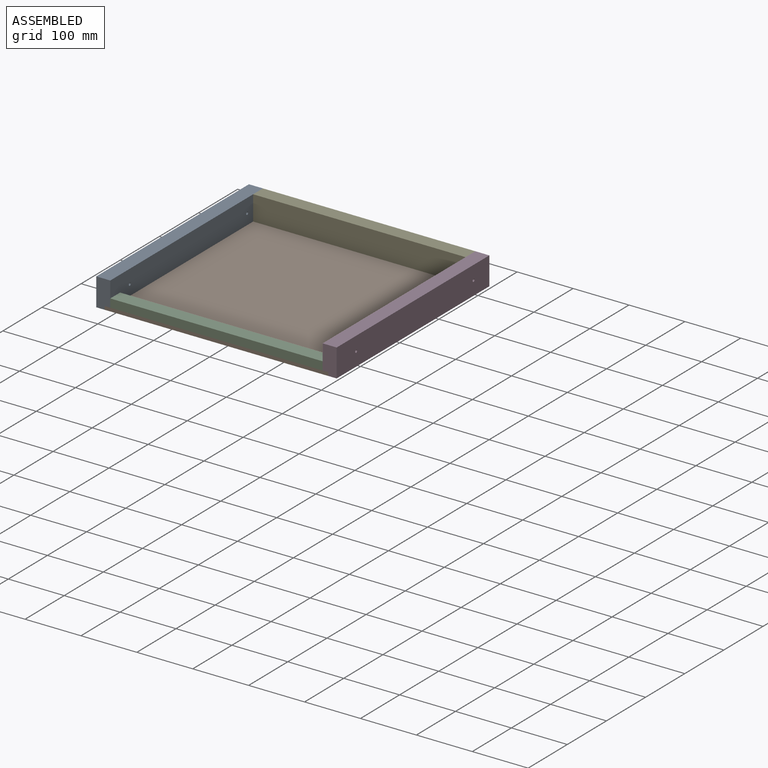
[diagram: assembled view]
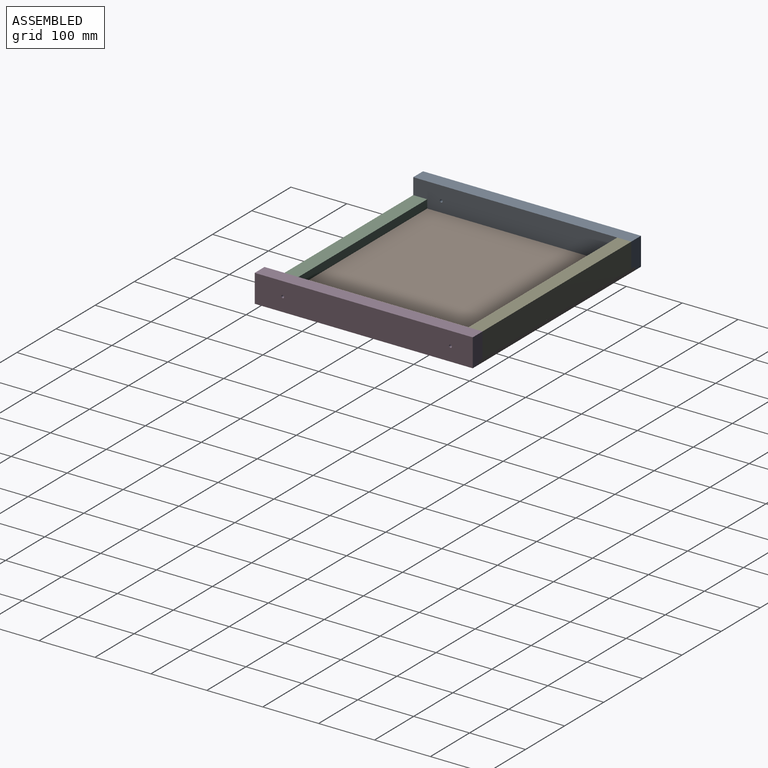
[diagram: assembled view, second angle]
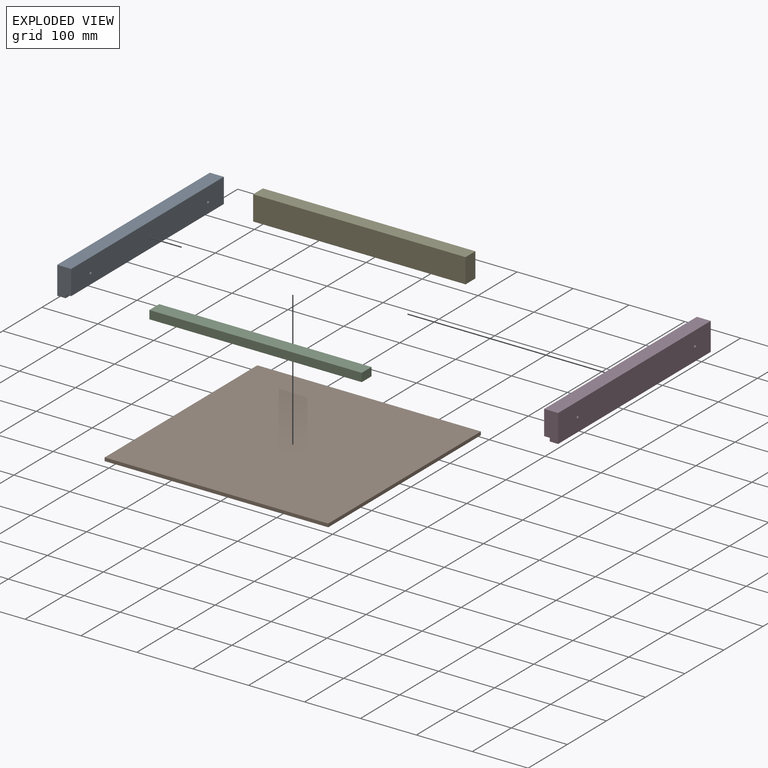
[diagram: exploded view]
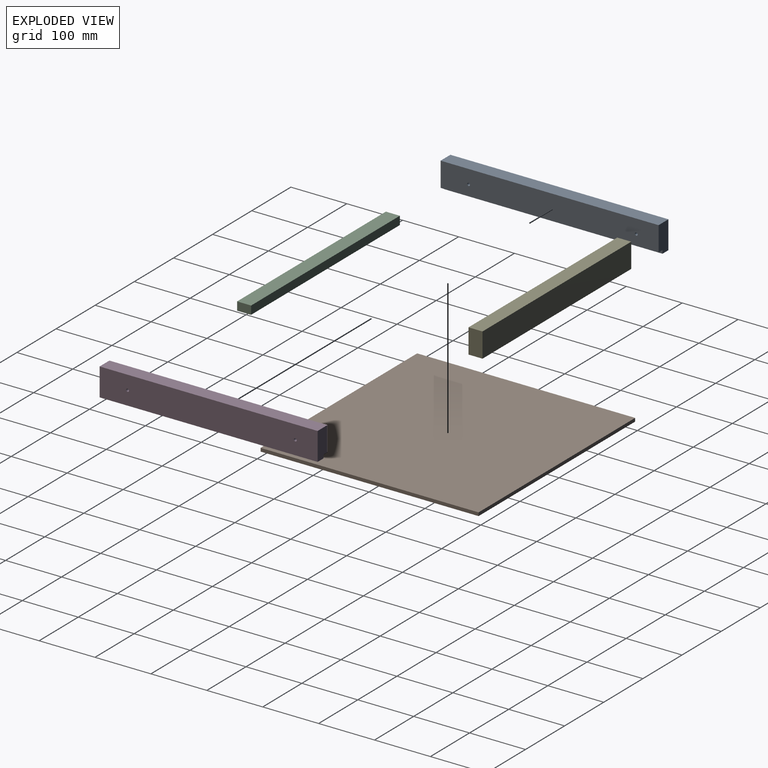
[diagram: exploded view, second angle]
ASSEMBLY  parts=5 mates=4
PART A: 10 faces, bbox 25x390x50 mm
  f0: plane 390x50mm, normal (-1,0,0), area 19460.7mm2, adj f1,f5,f6,f7,f8,f9
  f1: plane 390x15mm, normal (0,0,-1), area 5850mm2, adj f0,f2,f6,f7
  f2: plane 390x6mm, normal (1,0,0), area 2340mm2, adj f1,f3,f6,f7
  f3: plane 390x10mm, normal (0,0,-1), area 3900mm2, adj f2,f4,f6,f7
  f4: plane 390x44mm, normal (1,0,0), area 17120.7mm2, adj f3,f5,f6,f7,f8,f9
  f5: plane 390x25mm, normal (0,0,1), area 9750mm2, adj f0,f4,f6,f7
  f6: plane 50x25mm, normal (0,-1,0), area 1190mm2, adj f0,f1,f2,f3,f4,f5
  f7: plane 50x25mm, normal (0,1,0), area 1190mm2, adj f0,f1,f2,f3,f4,f5
  f8: cylinder r=2.5mm len=25mm, axis (1,0,0), area 392.7mm2, adj f0,f4
  f9: cylinder r=2.5mm len=25mm, axis (1,0,0), area 392.7mm2, adj f0,f4
PART B: 6 faces, bbox 400x390x6 mm
  f0: plane 390x6mm, normal (-1,0,0), area 2340mm2, adj f1,f3,f4,f5
  f1: plane 400x6mm, normal (0,-1,0), area 2400mm2, adj f0,f2,f4,f5
  f2: plane 390x6mm, normal (1,0,0), area 2340mm2, adj f1,f3,f4,f5
  f3: plane 400x6mm, normal (0,1,0), area 2400mm2, adj f0,f2,f4,f5
  f4: plane 400x390mm, normal (0,0,1), area 156000mm2, adj f0,f1,f2,f3
  f5: plane 400x390mm, normal (0,0,-1), area 156000mm2, adj f0,f1,f2,f3
PART C: 6 faces, bbox 380x25x15 mm
  f0: plane 380x15mm, normal (0,-1,0), area 5700mm2, adj f1,f3,f4,f5
  f1: plane 380x25mm, normal (0,0,-1), area 9500mm2, adj f0,f2,f4,f5
  f2: plane 380x15mm, normal (0,1,0), area 5700mm2, adj f1,f3,f4,f5
  f3: plane 380x25mm, normal (0,0,1), area 9500mm2, adj f0,f2,f4,f5
  f4: plane 25x15mm, normal (1,0,0), area 375mm2, adj f0,f1,f2,f3
  f5: plane 25x15mm, normal (-1,0,0), area 375mm2, adj f0,f1,f2,f3
PART D: 10 faces, bbox 25x390x50 mm
  f0: plane 390x50mm, normal (1,0,0), area 19460.7mm2, adj f1,f5,f6,f7,f8,f9
  f1: plane 390x25mm, normal (0,0,1), area 9750mm2, adj f0,f2,f6,f7
  f2: plane 390x44mm, normal (-1,0,0), area 17120.7mm2, adj f1,f3,f6,f7,f8,f9
  f3: plane 390x10mm, normal (0,0,-1), area 3900mm2, adj f2,f4,f6,f7
  f4: plane 390x6mm, normal (-1,0,0), area 2340mm2, adj f3,f5,f6,f7
  f5: plane 390x15mm, normal (0,0,-1), area 5850mm2, adj f0,f4,f6,f7
  f6: plane 50x25mm, normal (0,-1,0), area 1190mm2, adj f0,f1,f2,f3,f4,f5
  f7: plane 50x25mm, normal (0,1,0), area 1190mm2, adj f0,f1,f2,f3,f4,f5
  f8: cylinder r=2.5mm len=25mm, axis (1,0,0), area 392.7mm2, adj f0,f2
  f9: cylinder r=2.5mm len=25mm, axis (1,0,0), area 392.7mm2, adj f0,f2
PART E: 6 faces, bbox 380x25x44 mm
  f0: plane 380x44mm, normal (0,-1,0), area 16720mm2, adj f1,f3,f4,f5
  f1: plane 380x25mm, normal (0,0,-1), area 9500mm2, adj f0,f2,f4,f5
  f2: plane 380x44mm, normal (0,1,0), area 16720mm2, adj f1,f3,f4,f5
  f3: plane 380x25mm, normal (0,0,1), area 9500mm2, adj f0,f2,f4,f5
  f4: plane 44x25mm, normal (1,0,0), area 1100mm2, adj f0,f1,f2,f3
  f5: plane 44x25mm, normal (-1,0,0), area 1100mm2, adj f0,f1,f2,f3
PLACE A t=(-210.49,190.47,22.13)mm
PLACE B t=(-7.99,-4.53,-2.87)mm
PLACE C t=(-197.99,-187.03,10.63)mm
PLACE D t=(194.51,190.47,22.13)mm
PLACE E t=(-197.99,177.97,25.13)mm
MATE fastened D.f3 <-> B.f4  axis (0,0,-1) through (192.01,190.47,3.13)mm
MATE fastened A.f3 <-> B.f4  axis (0,0,-1) through (-207.99,190.47,3.13)mm
MATE fastened E.f5 <-> A.f4  axis (-1,0,0) through (-197.99,190.47,3.13)mm
MATE fastened C.f5 <-> A.f4  axis (-1,0,0) through (-197.99,-199.53,3.13)mm
